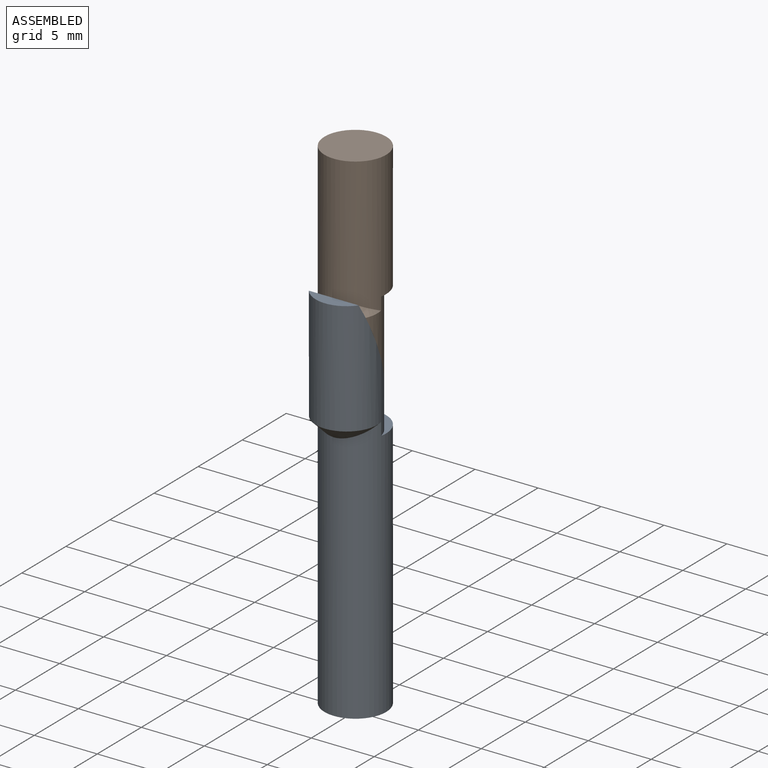
[diagram: assembled view]
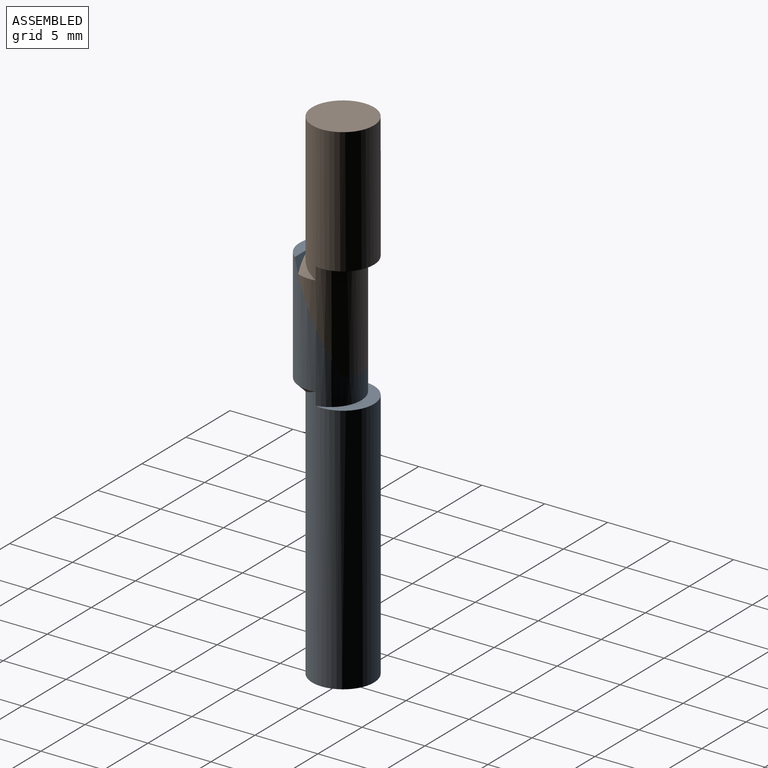
[diagram: assembled view, second angle]
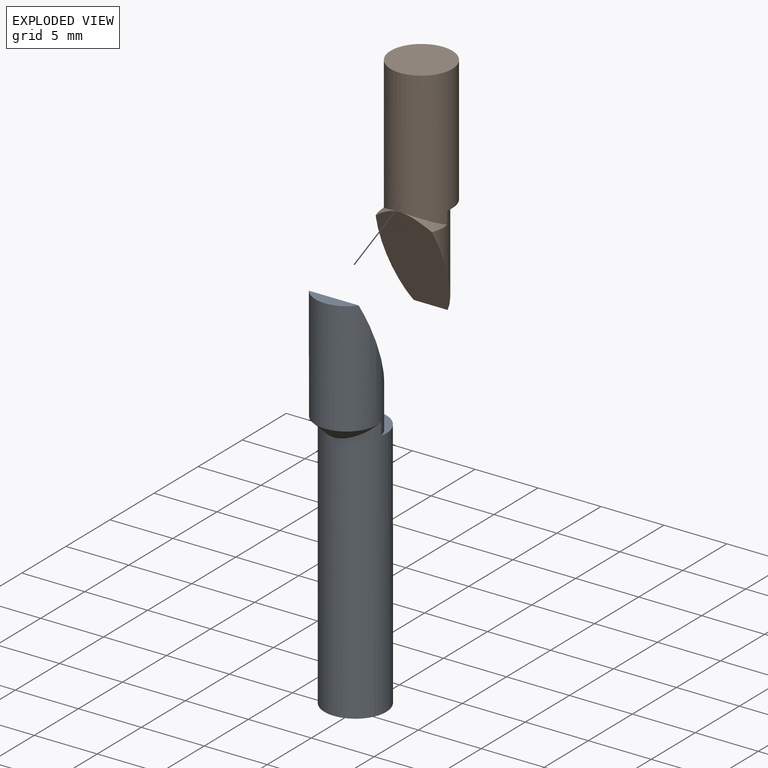
[diagram: exploded view]
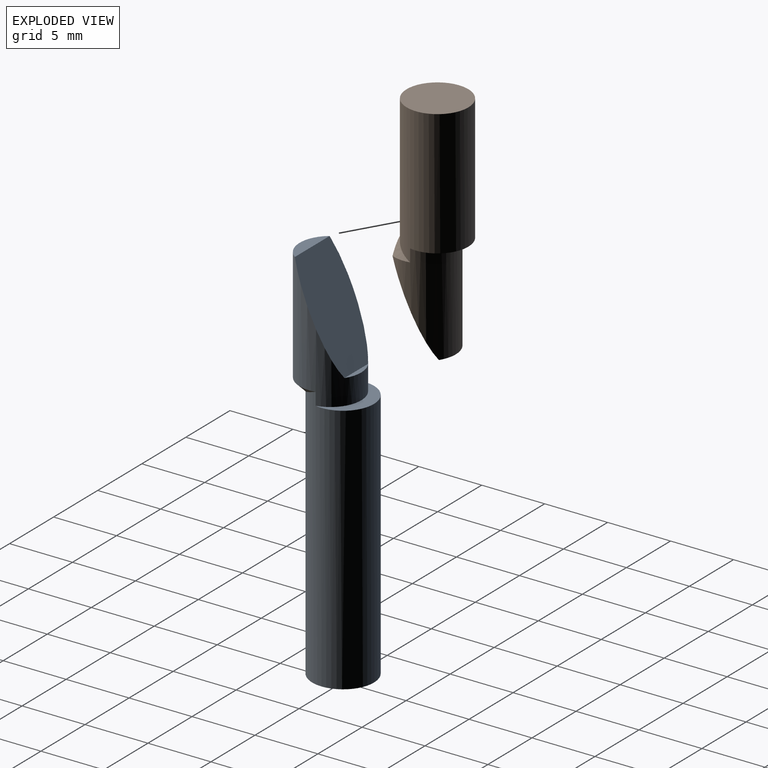
[diagram: exploded view, second angle]
ASSEMBLY  parts=2 mates=2
PART A: 8 faces, bbox 4.9x5.9x30 mm
  f0: cylinder r=2.45mm len=10mm, axis (0,0,-1), area 89mm2, adj f1,f2,f3,f5,f6,f7
  f1: plane 3.95x1mm, normal (0,0,1), area 2.8mm2, adj f0,f7
  f2: cylinder r=2.45mm len=21mm, axis (0,0,-1), area 310.5mm2, adj f0,f3,f4,f5
  f3: plane 4.9x2.95mm, normal (0,0,1), area 4.9mm2, adj f0,f2
  f4: plane 4.9x4.9mm, normal (0,0,-1), area 18.9mm2, adj f2
  f5: cone r=2.45mm half-angle=45deg, axis (0,0,1), area 6.9mm2, adj f0,f2
  f6: plane 2.68x0.4mm, normal (0,0,1), area 0.7mm2, adj f0,f7
  f7: plane 8x4.9mm, normal (0,0.92,0.4), area 38.3mm2, adj f0,f1,f6
PART B: 8 faces, bbox 4.9x5.9x18 mm
  f0: cylinder r=2.45mm len=8mm, axis (0,0,-1), area 52.6mm2, adj f1,f2,f3,f4,f6,f7
  f1: cone r=2.45mm half-angle=45deg, axis (0,0,1), area 1.1mm2, adj f0,f3,f7
  f2: cone r=2.45mm half-angle=45deg, axis (0,0,1), area 1.1mm2, adj f0,f3,f7
  f3: cylinder r=2.45mm len=11mm, axis (0,0,-1), area 156.6mm2, adj f0,f1,f2,f4,f5
  f4: plane 4.9x2.95mm, normal (0,0,1), area 4.9mm2, adj f0,f3
  f5: plane 4.9x4.9mm, normal (0,0,-1), area 18.9mm2, adj f3
  f6: plane 2.68x0.4mm, normal (0,0,1), area 0.7mm2, adj f0,f7
  f7: plane 8x4.9mm, normal (0,-0.92,0.4), area 36.9mm2, adj f0,f1,f2,f6
PLACE A at identity fixed
PLACE B rot(axis=(0,1,0),180deg) t=(0,8.1,40)mm
MATE planar B.f7 <-> A.f7  axis (0,-0.92,-0.4) through (0,-0.71,26.02)mm
MATE slider B.f3 <-> A.f2  axis (0,0,1) through (0,0,40)mm
